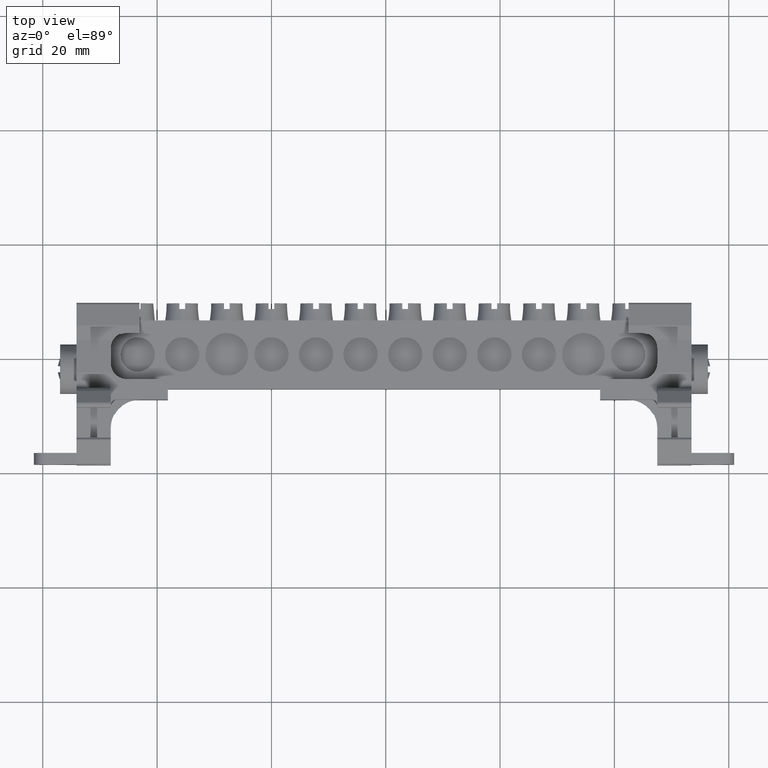
[diagram: clean part render]
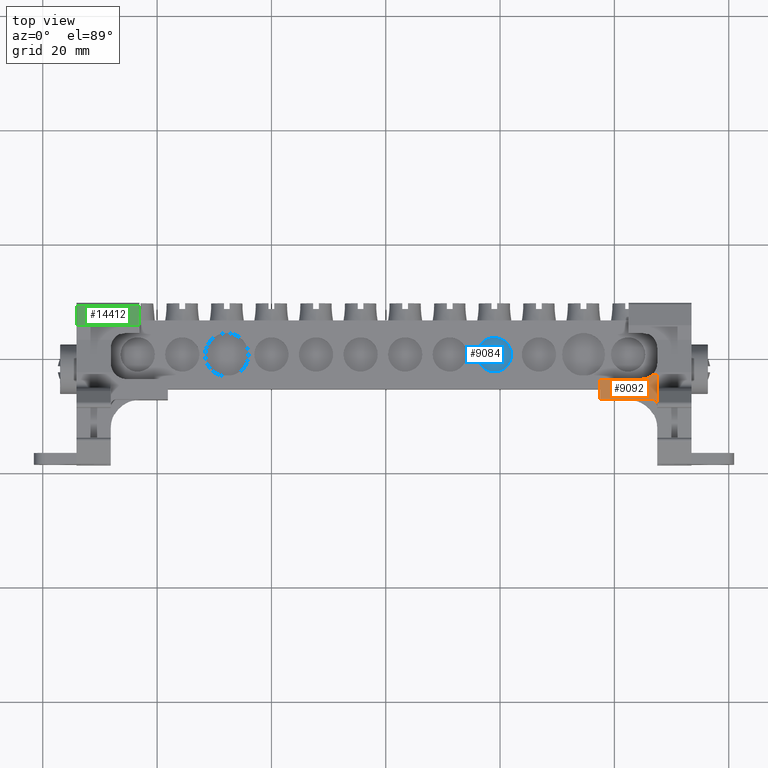
[diagram: same view with three faces highlighted in distinct colors, each labeled with its STEP entity id]
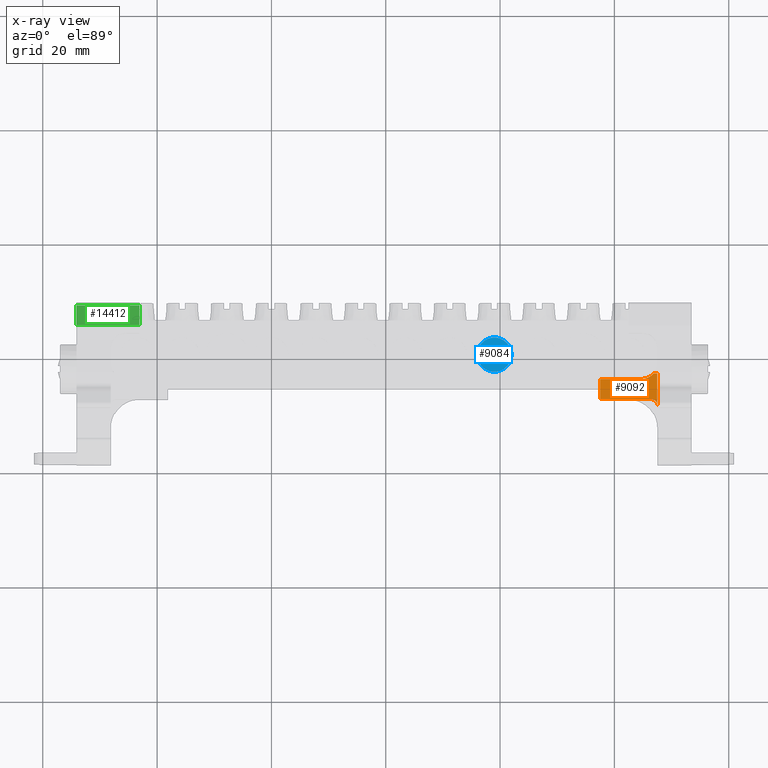
[diagram: x-ray of the same camera — body ghosted, the three highlighted faces saturated]
A machine part, top view with three faces highlighted in distinct colors.
The next image is the same camera in x-ray (body ghosted, the three faces saturated) — at least one of them is partly hidden behind the body in this view.
Their STEP definitions:

[orange] entity #9092 — the highlighted planar face has unit normal (-0, 0, 1).
#696 = LINE ( 'NONE', #704, #1453 ) ;
#704 = CARTESIAN_POINT ( 'NONE',  ( -28.37490276648495100, -43.78758989761751500, 101.3154422156380300 ) ) ;
#766 = DIRECTION ( 'NONE',  ( -1.000000000000000000, -1.100161628464460100E-014, 1.522468295627201200E-027 ) ) ;
#1453 = VECTOR ( 'NONE', #766, 1000.000000000000000 ) ;
#2167 = CARTESIAN_POINT ( 'NONE',  ( -26.50539649368624900, -42.80570166464878700, 101.3154422156379400 ) ) ;
#2172 = LINE ( 'NONE', #2167, #23363 ) ;
#2173 = DIRECTION ( 'NONE',  ( -1.000000000000000000, -1.109077728002170700E-014, -1.955555613115929000E-015 ) ) ;
#3201 = EDGE_CURVE ( 'NONE', #17622, #17607, #8184, .T. ) ;
#3207 = EDGE_CURVE ( 'NONE', #17622, #17632, #8151, .T. ) ;
#3489 = AXIS2_PLACEMENT_3D ( 'NONE', #24389, #24390, #24410 ) ;
#4322 = EDGE_CURVE ( 'NONE', #17238, #15621, #5446, .T. ) ;
#4324 = EDGE_CURVE ( 'NONE', #15682, #17647, #14121, .T. ) ;
#4411 = EDGE_CURVE ( 'NONE', #17550, #17238, #5536, .T. ) ;
#4414 = EDGE_CURVE ( 'NONE', #17632, #17550, #14171, .T. ) ;
#5446 = LINE ( 'NONE', #5447, #14162 ) ;
#5447 = CARTESIAN_POINT ( 'NONE',  ( -32.50539649368626300, -49.67006088807096400, 101.3154422156390400 ) ) ;
#5455 = DIRECTION ( 'NONE',  ( 0.0000000000000000000, 1.000000000000000000, -1.401796748264088300E-013 ) ) ;
#5461 = DIRECTION ( 'NONE',  ( -0.0000000000000000000, 1.000000000000000000, -1.383348239789809800E-013 ) ) ;
#5467 = CARTESIAN_POINT ( 'NONE',  ( -35.27739649368595600, -41.01558989761758100, 101.3154422156376200 ) ) ;
#5470 = DIRECTION ( 'NONE',  ( 2.352285033426075300E-015, -1.383858749693143900E-013, -1.000000000000000000 ) ) ;
#5536 = LINE ( 'NONE', #5540, #14169 ) ;
#5540 = CARTESIAN_POINT ( 'NONE',  ( -32.50539649368604200, -49.67006088807096400, 101.3154422156390400 ) ) ;
#5541 = DIRECTION ( 'NONE',  ( -0.0000000000000000000, 1.000000000000000000, -1.383348239789809800E-013 ) ) ;
#5567 = CARTESIAN_POINT ( 'NONE',  ( -33.51339649368586000, -48.32358989761767300, 101.3154422156386000 ) ) ;
#5571 = DIRECTION ( 'NONE',  ( 2.352285033426080400E-015, -1.387778780781406000E-013, -1.000000000000000000 ) ) ;
#5575 = DIRECTION ( 'NONE',  ( 0.0000000000000000000, -1.000000000000000000, 1.376764663473653600E-013 ) ) ;
#8151 = LINE ( 'NONE', #8165, #14088 ) ;
#8165 = CARTESIAN_POINT ( 'NONE',  ( -110.1314764936857500, -47.31558989761822400, 101.3154422156385400 ) ) ;
#8167 = CARTESIAN_POINT ( 'NONE',  ( -42.50539649368586500, -45.09798989761807100, 101.3154422156383700 ) ) ;
#8168 = DIRECTION ( 'NONE',  ( 1.000000000000000000, 3.254029360473868200E-028, 2.352285033426070200E-015 ) ) ;
#8182 = DIRECTION ( 'NONE',  ( -1.100161628464490100E-014, 1.000000000000000000, -0.0000000000000000000 ) ) ;
#8184 = LINE ( 'NONE', #8167, #14008 ) ;
#9092 = ADVANCED_FACE ( 'NONE', ( #24420 ), #24411, .T. ) ;
#11494 = EDGE_CURVE ( 'NONE', #17647, #17607, #696, .T. ) ;
#11802 = CARTESIAN_POINT ( 'NONE',  ( -32.50539649368626300, -44.59739654058957800, 101.3154422156382900 ) ) ;
#12094 = CARTESIAN_POINT ( 'NONE',  ( -32.50539649368615600, -48.32358989761766600, 101.3154422156387400 ) ) ;
#12128 = CARTESIAN_POINT ( 'NONE',  ( -42.50539649368588600, -43.78758989761767100, 101.3154422156380300 ) ) ;
#12135 = CARTESIAN_POINT ( 'NONE',  ( -35.27739649368588500, -43.78758989761759300, 101.3154422156380100 ) ) ;
#12147 = CARTESIAN_POINT ( 'NONE',  ( -33.51339649368586000, -47.31558989761867900, 101.3154422156384600 ) ) ;
#12162 = CARTESIAN_POINT ( 'NONE',  ( -42.50539649368585800, -47.31558989761843000, 101.3154422156385400 ) ) ;
#12570 = CARTESIAN_POINT ( 'NONE',  ( -33.16091737459780800, -42.80570166464885800, 101.3154422156379000 ) ) ;
#13539 = CARTESIAN_POINT ( 'NONE',  ( -32.50539649368618500, -42.80570166464885800, 101.3154422156379900 ) ) ;
#14008 = VECTOR ( 'NONE', #8182, 1000.000000000000000 ) ;
#14088 = VECTOR ( 'NONE', #8168, 1000.000000000000000 ) ;
#14121 = CIRCLE ( 'NONE', #14122, 2.771999999999996700 ) ;
#14122 = AXIS2_PLACEMENT_3D ( 'NONE', #5467, #5470, #5455 ) ;
#14162 = VECTOR ( 'NONE', #5461, 1000.000000000000000 ) ;
#14169 = VECTOR ( 'NONE', #5541, 1000.000000000000000 ) ;
#14171 = CIRCLE ( 'NONE', #14172, 1.008000000000002000 ) ;
#14172 = AXIS2_PLACEMENT_3D ( 'NONE', #5567, #5571, #5575 ) ;
#14571 = EDGE_CURVE ( 'NONE', #15621, #15682, #2172, .T. ) ;
#15621 = VERTEX_POINT ( 'NONE', #13539 ) ;
#15682 = VERTEX_POINT ( 'NONE', #12570 ) ;
#17238 = VERTEX_POINT ( 'NONE', #11802 ) ;
#17550 = VERTEX_POINT ( 'NONE', #12094 ) ;
#17607 = VERTEX_POINT ( 'NONE', #12128 ) ;
#17622 = VERTEX_POINT ( 'NONE', #12162 ) ;
#17632 = VERTEX_POINT ( 'NONE', #12147 ) ;
#17647 = VERTEX_POINT ( 'NONE', #12135 ) ;
#18576 = EDGE_LOOP ( 'NONE', ( #18628, #18627, #19916, #18661, #19864, #19873, #18625, #19920 ) ) ;
#18625 = ORIENTED_EDGE ( 'NONE', *, *, #3207, .T. ) ;
#18627 = ORIENTED_EDGE ( 'NONE', *, *, #4322, .T. ) ;
#18628 = ORIENTED_EDGE ( 'NONE', *, *, #4411, .T. ) ;
#18661 = ORIENTED_EDGE ( 'NONE', *, *, #4324, .T. ) ;
#19864 = ORIENTED_EDGE ( 'NONE', *, *, #11494, .T. ) ;
#19873 = ORIENTED_EDGE ( 'NONE', *, *, #3201, .F. ) ;
#19916 = ORIENTED_EDGE ( 'NONE', *, *, #14571, .T. ) ;
#19920 = ORIENTED_EDGE ( 'NONE', *, *, #4414, .T. ) ;
#23363 = VECTOR ( 'NONE', #2173, 1000.000000000000000 ) ;
#24389 = CARTESIAN_POINT ( 'NONE',  ( -110.1314764936857500, -49.67006088807096400, 101.3154422156388500 ) ) ;
#24390 = DIRECTION ( 'NONE',  ( -2.352285033426070200E-015, 1.383348239789809800E-013, 1.000000000000000000 ) ) ;
#24410 = DIRECTION ( 'NONE',  ( 0.0000000000000000000, -1.000000000000000000, 1.383348239789809800E-013 ) ) ;
#24411 = PLANE ( 'NONE',  #3489 ) ;
#24420 = FACE_OUTER_BOUND ( 'NONE', #18576, .T. ) ;

[blue] entity #9084 — the highlighted planar face has unit normal (0, 0, -1).
#1858 = CARTESIAN_POINT ( 'NONE',  ( -64.00539649368640500, -39.46391012921964900, 98.75723811290720300 ) ) ;
#1859 = CARTESIAN_POINT ( 'NONE',  ( -58.00539649368639800, -39.46391012921964900, 98.75723811290720300 ) ) ;
#3537 = AXIS2_PLACEMENT_3D ( 'NONE', #24425, #24397, #24431 ) ;
#3969 = AXIS2_PLACEMENT_3D ( 'NONE', #11595, #11578, #11596 ) ;
#3978 = CIRCLE ( 'NONE', #3969, 3.000000000000002700 ) ;
#9084 = ADVANCED_FACE ( 'NONE', ( #24399 ), #24430, .F. ) ;
#9742 = EDGE_CURVE ( 'NONE', #10968, #10980, #3978, .T. ) ;
#10968 = VERTEX_POINT ( 'NONE', #1858 ) ;
#10980 = VERTEX_POINT ( 'NONE', #1859 ) ;
#11427 = EDGE_LOOP ( 'NONE', ( #18961, #19024 ) ) ;
#11578 = DIRECTION ( 'NONE',  ( 0.0000000000000000000, 0.0000000000000000000, 1.000000000000000000 ) ) ;
#11595 = CARTESIAN_POINT ( 'NONE',  ( -61.00539649368639800, -39.46391012921964900, 98.75723811290720300 ) ) ;
#11596 = DIRECTION ( 'NONE',  ( -1.000000000000000000, 0.0000000000000000000, 0.0000000000000000000 ) ) ;
#12965 = DIRECTION ( 'NONE',  ( 0.0000000000000000000, 0.0000000000000000000, 1.000000000000000000 ) ) ;
#13003 = CARTESIAN_POINT ( 'NONE',  ( -61.00539649368639800, -39.46391012921964900, 98.75723811290720300 ) ) ;
#13004 = DIRECTION ( 'NONE',  ( -1.000000000000000000, 0.0000000000000000000, 0.0000000000000000000 ) ) ;
#15907 = EDGE_CURVE ( 'NONE', #10980, #10968, #23661, .T. ) ;
#18961 = ORIENTED_EDGE ( 'NONE', *, *, #9742, .T. ) ;
#19024 = ORIENTED_EDGE ( 'NONE', *, *, #15907, .T. ) ;
#23648 = AXIS2_PLACEMENT_3D ( 'NONE', #13003, #12965, #13004 ) ;
#23661 = CIRCLE ( 'NONE', #23648, 3.000000000000002700 ) ;
#24397 = DIRECTION ( 'NONE',  ( 0.0000000000000000000, 0.0000000000000000000, -1.000000000000000000 ) ) ;
#24399 = FACE_OUTER_BOUND ( 'NONE', #11427, .T. ) ;
#24425 = CARTESIAN_POINT ( 'NONE',  ( -30.80539649368639800, -44.96391012921961300, 98.75723811290720300 ) ) ;
#24430 = PLANE ( 'NONE',  #3537 ) ;
#24431 = DIRECTION ( 'NONE',  ( -1.000000000000000000, 0.0000000000000000000, -0.0000000000000000000 ) ) ;

[green] entity #14412 — the highlighted planar face has unit normal (-0, 0.2762, 0.9611).
#989 = AXIS2_PLACEMENT_3D ( 'NONE', #8874, #8887, #8860 ) ;
#2077 = CARTESIAN_POINT ( 'NONE',  ( -134.1053964936863300, -34.38262018978369400, 102.2694420894125200 ) ) ;
#2089 = DIRECTION ( 'NONE',  ( 1.000000000000000000, 1.530032651831079300E-015, 5.324163301494415300E-015 ) ) ;
#2107 = LINE ( 'NONE', #2077, #23314 ) ;
#2121 = CARTESIAN_POINT ( 'NONE',  ( -134.1053964936863300, -30.89492487859674700, 101.2671648481685600 ) ) ;
#2144 = LINE ( 'NONE', #2121, #23312 ) ;
#2148 = DIRECTION ( 'NONE',  ( -1.000000000000000000, -1.530032651831079300E-015, -5.324163301494415300E-015 ) ) ;
#3302 = EDGE_CURVE ( 'NONE', #15741, #15808, #5389, .T. ) ;
#5387 = CARTESIAN_POINT ( 'NONE',  ( -134.1053964936863600, -34.38262018978369400, 102.2694420894125100 ) ) ;
#5389 = LINE ( 'NONE', #5387, #14145 ) ;
#5409 = DIRECTION ( 'NONE',  ( -7.648579657374880100E-015, 0.9611011415393321300, -0.2761966613335371000 ) ) ;
#8860 = DIRECTION ( 'NONE',  ( 0.0000000000000000000, -0.9611011415393320200, 0.2761966613335374300 ) ) ;
#8874 = CARTESIAN_POINT ( 'NONE',  ( -134.1053964936863300, -35.99362151255452600, 102.7324039646222100 ) ) ;
#8885 = FACE_OUTER_BOUND ( 'NONE', #18322, .T. ) ;
#8887 = DIRECTION ( 'NONE',  ( -5.539649336975144500E-015, 0.2761966613335374900, 0.9611011415393321300 ) ) ;
#8895 = PLANE ( 'NONE',  #989 ) ;
#12165 = DIRECTION ( 'NONE',  ( 2.294573897212481100E-014, -0.9611011415393250200, 0.2761966613335620800 ) ) ;
#12185 = LINE ( 'NONE', #12196, #23711 ) ;
#12196 = CARTESIAN_POINT ( 'NONE',  ( -123.1053964936866300, -30.89492487859671500, 101.2671648481686600 ) ) ;
#12676 = CARTESIAN_POINT ( 'NONE',  ( -134.1053964936863600, -34.38262018978383600, 102.2694420894125500 ) ) ;
#12696 = CARTESIAN_POINT ( 'NONE',  ( -123.1053964936865300, -34.38262018978328200, 102.2694420894125900 ) ) ;
#12771 = CARTESIAN_POINT ( 'NONE',  ( -123.1053964936866300, -30.89492487859674700, 101.2671648481686300 ) ) ;
#12802 = CARTESIAN_POINT ( 'NONE',  ( -134.1053964936863800, -30.89492487859700300, 101.2671648481686200 ) ) ;
#14145 = VECTOR ( 'NONE', #5409, 1000.000000000000200 ) ;
#14412 = ADVANCED_FACE ( 'NONE', ( #8885 ), #8895, .T. ) ;
#14548 = EDGE_CURVE ( 'NONE', #15741, #15757, #2107, .T. ) ;
#14556 = EDGE_CURVE ( 'NONE', #15792, #15808, #2144, .T. ) ;
#15741 = VERTEX_POINT ( 'NONE', #12676 ) ;
#15757 = VERTEX_POINT ( 'NONE', #12696 ) ;
#15792 = VERTEX_POINT ( 'NONE', #12771 ) ;
#15808 = VERTEX_POINT ( 'NONE', #12802 ) ;
#18322 = EDGE_LOOP ( 'NONE', ( #19508, #19542, #19579, #19529 ) ) ;
#19508 = ORIENTED_EDGE ( 'NONE', *, *, #14556, .T. ) ;
#19529 = ORIENTED_EDGE ( 'NONE', *, *, #20149, .F. ) ;
#19542 = ORIENTED_EDGE ( 'NONE', *, *, #3302, .F. ) ;
#19579 = ORIENTED_EDGE ( 'NONE', *, *, #14548, .T. ) ;
#20149 = EDGE_CURVE ( 'NONE', #15792, #15757, #12185, .T. ) ;
#23312 = VECTOR ( 'NONE', #2148, 1000.000000000000000 ) ;
#23314 = VECTOR ( 'NONE', #2089, 1000.000000000000000 ) ;
#23711 = VECTOR ( 'NONE', #12165, 1000.000000000000100 ) ;